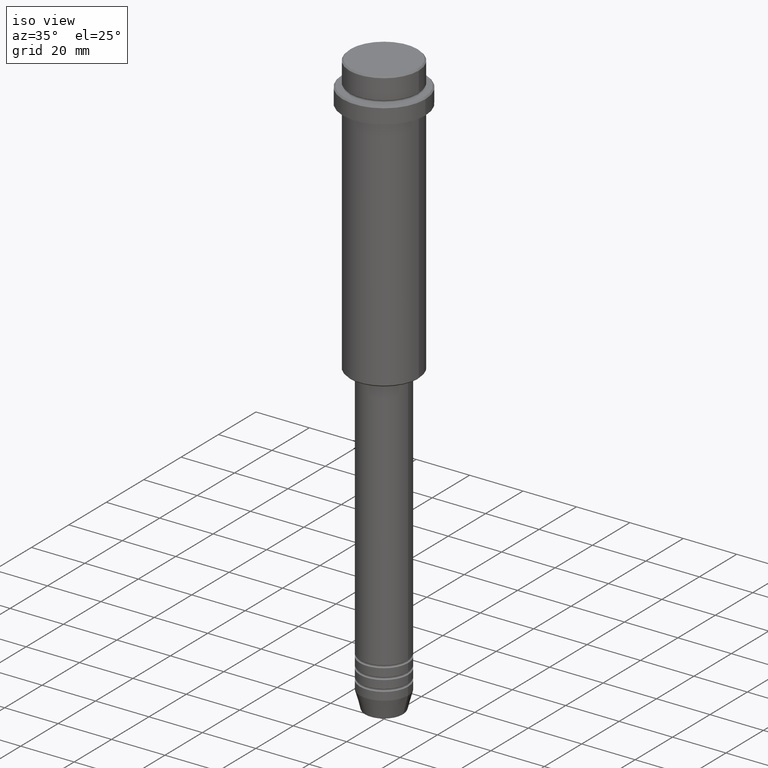
[diagram: clean part render]
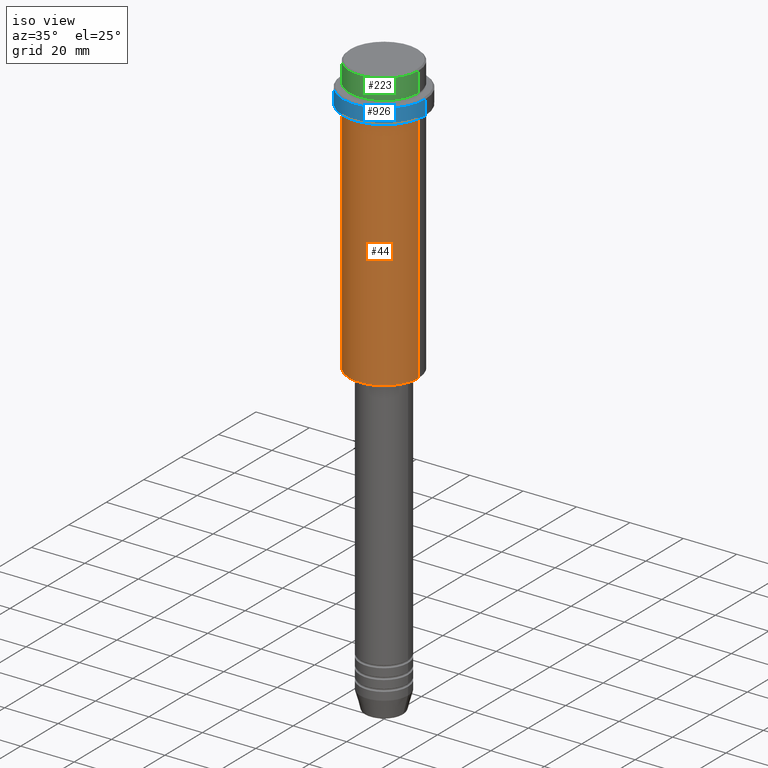
[diagram: same view with three faces highlighted in distinct colors, each labeled with its STEP entity id]
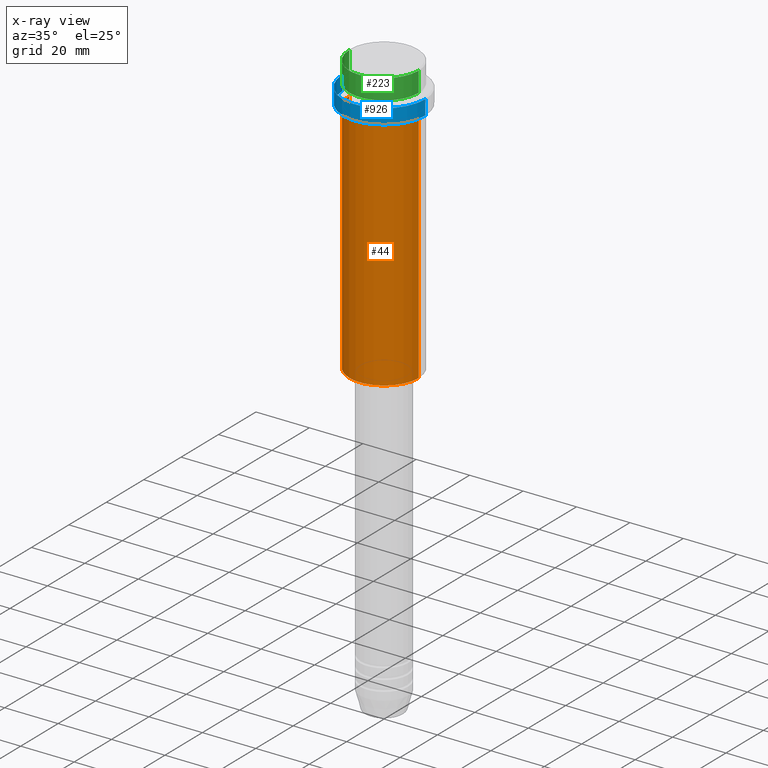
[diagram: x-ray of the same camera — body ghosted, the three highlighted faces saturated]
A machine part, iso view with three faces highlighted in distinct colors.
The next image is the same camera in x-ray (body ghosted, the three faces saturated) — at least one of them is partly hidden behind the body in this view.
Their STEP definitions:

[orange] entity #44 — the highlighted cylindrical surface (partial cylindrical patch) has radius 13 mm, axis along (-0, -0, 1).
#34 = CARTESIAN_POINT ( 'NONE',  ( 13.00000000000000000, 0.000000000000000000, -16.00000000000000000 ) ) ;
#44 = ADVANCED_FACE ( 'NONE', ( #169 ), #496, .T. ) ;
#48 = VERTEX_POINT ( 'NONE', #214 ) ;
#49 = EDGE_CURVE ( 'NONE', #48, #468, #306, .T. ) ;
#59 = AXIS2_PLACEMENT_3D ( 'NONE', #1169, #1374, #190 ) ;
#105 = EDGE_CURVE ( 'NONE', #48, #1332, #671, .T. ) ;
#169 = FACE_OUTER_BOUND ( 'NONE', #1070, .T. ) ;
#190 = DIRECTION ( 'NONE',  ( 1.000000000000000000, 0.000000000000000000, 0.000000000000000000 ) ) ;
#214 = CARTESIAN_POINT ( 'NONE',  ( -13.00000000000000000, 1.592040838891559095E-15, -104.4999999999999574 ) ) ;
#233 = ORIENTED_EDGE ( 'NONE', *, *, #364, .T. ) ;
#236 = AXIS2_PLACEMENT_3D ( 'NONE', #1237, #807, #1250 ) ;
#306 = CIRCLE ( 'NONE', #236, 13.00000000000000000 ) ;
#307 = VECTOR ( 'NONE', #676, 1000.000000000000000 ) ;
#364 = EDGE_CURVE ( 'NONE', #468, #1100, #1241, .T. ) ;
#421 = VECTOR ( 'NONE', #1118, 1000.000000000000000 ) ;
#468 = VERTEX_POINT ( 'NONE', #478 ) ;
#478 = CARTESIAN_POINT ( 'NONE',  ( 13.00000000000000000, 0.000000000000000000, -104.4999999999999574 ) ) ;
#496 = CYLINDRICAL_SURFACE ( 'NONE', #59, 13.00000000000000000 ) ;
#568 = CARTESIAN_POINT ( 'NONE',  ( 13.00000000000000000, 0.000000000000000000, 0.000000000000000000 ) ) ;
#633 = CARTESIAN_POINT ( 'NONE',  ( -13.00000000000000000, 1.592040838891559095E-15, -16.00000000000000000 ) ) ;
#671 = LINE ( 'NONE', #788, #421 ) ;
#676 = DIRECTION ( 'NONE',  ( -0.000000000000000000, -0.000000000000000000, 1.000000000000000000 ) ) ;
#783 = ORIENTED_EDGE ( 'NONE', *, *, #105, .F. ) ;
#788 = CARTESIAN_POINT ( 'NONE',  ( -13.00000000000000000, 1.592040838891559095E-15, 0.000000000000000000 ) ) ;
#807 = DIRECTION ( 'NONE',  ( -0.000000000000000000, -0.000000000000000000, 1.000000000000000000 ) ) ;
#852 = CARTESIAN_POINT ( 'NONE',  ( 0.000000000000000000, 0.000000000000000000, -16.00000000000000000 ) ) ;
#855 = AXIS2_PLACEMENT_3D ( 'NONE', #852, #1393, #1200 ) ;
#887 = ORIENTED_EDGE ( 'NONE', *, *, #49, .T. ) ;
#1023 = ORIENTED_EDGE ( 'NONE', *, *, #1390, .F. ) ;
#1070 = EDGE_LOOP ( 'NONE', ( #783, #887, #233, #1023 ) ) ;
#1100 = VERTEX_POINT ( 'NONE', #34 ) ;
#1118 = DIRECTION ( 'NONE',  ( -0.000000000000000000, -0.000000000000000000, 1.000000000000000000 ) ) ;
#1169 = CARTESIAN_POINT ( 'NONE',  ( 0.000000000000000000, 0.000000000000000000, 0.000000000000000000 ) ) ;
#1200 = DIRECTION ( 'NONE',  ( 1.000000000000000000, 0.000000000000000000, 0.000000000000000000 ) ) ;
#1237 = CARTESIAN_POINT ( 'NONE',  ( 0.000000000000000000, 0.000000000000000000, -104.4999999999999574 ) ) ;
#1241 = LINE ( 'NONE', #568, #307 ) ;
#1250 = DIRECTION ( 'NONE',  ( -1.000000000000000000, 0.000000000000000000, 0.000000000000000000 ) ) ;
#1309 = CIRCLE ( 'NONE', #855, 13.00000000000000000 ) ;
#1332 = VERTEX_POINT ( 'NONE', #633 ) ;
#1374 = DIRECTION ( 'NONE',  ( -0.000000000000000000, -0.000000000000000000, 1.000000000000000000 ) ) ;
#1390 = EDGE_CURVE ( 'NONE', #1332, #1100, #1309, .T. ) ;
#1393 = DIRECTION ( 'NONE',  ( -0.000000000000000000, -0.000000000000000000, 1.000000000000000000 ) ) ;

[blue] entity #926 — the highlighted cylindrical surface (partial cylindrical patch) has radius 15.5 mm, axis along (-0, -0, 1).
#2 = EDGE_CURVE ( 'NONE', #346, #435, #1295, .T. ) ;
#23 = CARTESIAN_POINT ( 'NONE',  ( 0.000000000000000000, 0.000000000000000000, -9.500000000000014211 ) ) ;
#73 = CARTESIAN_POINT ( 'NONE',  ( 15.50000000000000000, 0.000000000000000000, -15.00000000000000178 ) ) ;
#177 = CARTESIAN_POINT ( 'NONE',  ( -15.50000000000000000, 1.898202538678397557E-15, 0.000000000000000000 ) ) ;
#222 = CARTESIAN_POINT ( 'NONE',  ( 0.000000000000000000, 0.000000000000000000, 0.000000000000000000 ) ) ;
#256 = AXIS2_PLACEMENT_3D ( 'NONE', #23, #1226, #667 ) ;
#346 = VERTEX_POINT ( 'NONE', #1330 ) ;
#426 = LINE ( 'NONE', #177, #990 ) ;
#435 = VERTEX_POINT ( 'NONE', #796 ) ;
#462 = EDGE_CURVE ( 'NONE', #1318, #798, #964, .T. ) ;
#464 = CARTESIAN_POINT ( 'NONE',  ( 0.000000000000000000, 0.000000000000000000, -15.00000000000000178 ) ) ;
#573 = DIRECTION ( 'NONE',  ( 1.000000000000000000, 0.000000000000000000, 0.000000000000000000 ) ) ;
#591 = VECTOR ( 'NONE', #972, 1000.000000000000000 ) ;
#622 = ORIENTED_EDGE ( 'NONE', *, *, #2, .T. ) ;
#647 = DIRECTION ( 'NONE',  ( 1.000000000000000000, 0.000000000000000000, 0.000000000000000000 ) ) ;
#667 = DIRECTION ( 'NONE',  ( 1.000000000000000000, 0.000000000000000000, 0.000000000000000000 ) ) ;
#713 = EDGE_LOOP ( 'NONE', ( #889, #818, #1217, #622 ) ) ;
#750 = FACE_OUTER_BOUND ( 'NONE', #713, .T. ) ;
#771 = EDGE_CURVE ( 'NONE', #1318, #435, #426, .T. ) ;
#796 = CARTESIAN_POINT ( 'NONE',  ( -15.50000000000000000, 1.898202538678397557E-15, -9.500000000000014211 ) ) ;
#798 = VERTEX_POINT ( 'NONE', #73 ) ;
#806 = DIRECTION ( 'NONE',  ( -0.000000000000000000, -0.000000000000000000, 1.000000000000000000 ) ) ;
#818 = ORIENTED_EDGE ( 'NONE', *, *, #462, .T. ) ;
#858 = CARTESIAN_POINT ( 'NONE',  ( -15.50000000000000000, 1.898202538678397557E-15, -15.00000000000000178 ) ) ;
#889 = ORIENTED_EDGE ( 'NONE', *, *, #771, .F. ) ;
#926 = ADVANCED_FACE ( 'NONE', ( #750 ), #1191, .T. ) ;
#964 = CIRCLE ( 'NONE', #1042, 15.50000000000000000 ) ;
#972 = DIRECTION ( 'NONE',  ( -0.000000000000000000, -0.000000000000000000, 1.000000000000000000 ) ) ;
#990 = VECTOR ( 'NONE', #1175, 1000.000000000000000 ) ;
#1042 = AXIS2_PLACEMENT_3D ( 'NONE', #464, #1325, #573 ) ;
#1087 = CARTESIAN_POINT ( 'NONE',  ( 15.50000000000000000, 0.000000000000000000, 0.000000000000000000 ) ) ;
#1175 = DIRECTION ( 'NONE',  ( -0.000000000000000000, -0.000000000000000000, 1.000000000000000000 ) ) ;
#1183 = LINE ( 'NONE', #1087, #591 ) ;
#1191 = CYLINDRICAL_SURFACE ( 'NONE', #1199, 15.50000000000000000 ) ;
#1199 = AXIS2_PLACEMENT_3D ( 'NONE', #222, #806, #647 ) ;
#1217 = ORIENTED_EDGE ( 'NONE', *, *, #1302, .T. ) ;
#1226 = DIRECTION ( 'NONE',  ( 0.000000000000000000, 0.000000000000000000, -1.000000000000000000 ) ) ;
#1295 = CIRCLE ( 'NONE', #256, 15.50000000000000000 ) ;
#1302 = EDGE_CURVE ( 'NONE', #798, #346, #1183, .T. ) ;
#1318 = VERTEX_POINT ( 'NONE', #858 ) ;
#1325 = DIRECTION ( 'NONE',  ( -0.000000000000000000, -0.000000000000000000, 1.000000000000000000 ) ) ;
#1330 = CARTESIAN_POINT ( 'NONE',  ( 15.50000000000000000, 0.000000000000000000, -9.500000000000014211 ) ) ;

[green] entity #223 — the highlighted cylindrical surface (partial cylindrical patch) has radius 13 mm, axis along (-0, -0, 1).
#79 = CIRCLE ( 'NONE', #670, 12.99999999999999822 ) ;
#136 = ORIENTED_EDGE ( 'NONE', *, *, #817, .T. ) ;
#172 = VERTEX_POINT ( 'NONE', #1154 ) ;
#198 = DIRECTION ( 'NONE',  ( -0.000000000000000000, -0.000000000000000000, 1.000000000000000000 ) ) ;
#223 = ADVANCED_FACE ( 'NONE', ( #1076 ), #854, .T. ) ;
#230 = VECTOR ( 'NONE', #1135, 1000.000000000000000 ) ;
#331 = CARTESIAN_POINT ( 'NONE',  ( -12.99999999999999822, 1.592040838891558898E-15, -0.4999999999999483746 ) ) ;
#431 = DIRECTION ( 'NONE',  ( -0.000000000000000000, -0.000000000000000000, 1.000000000000000000 ) ) ;
#546 = AXIS2_PLACEMENT_3D ( 'NONE', #969, #431, #850 ) ;
#549 = ORIENTED_EDGE ( 'NONE', *, *, #1258, .T. ) ;
#559 = VERTEX_POINT ( 'NONE', #331 ) ;
#595 = CARTESIAN_POINT ( 'NONE',  ( 0.000000000000000000, 0.000000000000000000, -7.999999999999998224 ) ) ;
#670 = AXIS2_PLACEMENT_3D ( 'NONE', #595, #1270, #1038 ) ;
#678 = EDGE_CURVE ( 'NONE', #793, #559, #1064, .T. ) ;
#692 = CARTESIAN_POINT ( 'NONE',  ( 0.000000000000000000, 0.000000000000000000, -0.4999999999999483746 ) ) ;
#793 = VERTEX_POINT ( 'NONE', #1156 ) ;
#817 = EDGE_CURVE ( 'NONE', #172, #793, #940, .T. ) ;
#826 = LINE ( 'NONE', #1160, #230 ) ;
#850 = DIRECTION ( 'NONE',  ( 1.000000000000000000, 0.000000000000000000, 0.000000000000000000 ) ) ;
#854 = CYLINDRICAL_SURFACE ( 'NONE', #546, 12.99999999999999822 ) ;
#890 = ORIENTED_EDGE ( 'NONE', *, *, #678, .T. ) ;
#903 = DIRECTION ( 'NONE',  ( 1.000000000000000000, 0.000000000000000000, 0.000000000000000000 ) ) ;
#940 = LINE ( 'NONE', #1181, #1045 ) ;
#969 = CARTESIAN_POINT ( 'NONE',  ( 0.000000000000000000, 0.000000000000000000, 0.000000000000000000 ) ) ;
#999 = ORIENTED_EDGE ( 'NONE', *, *, #1238, .F. ) ;
#1038 = DIRECTION ( 'NONE',  ( 1.000000000000000000, 0.000000000000000000, 0.000000000000000000 ) ) ;
#1045 = VECTOR ( 'NONE', #198, 1000.000000000000000 ) ;
#1064 = CIRCLE ( 'NONE', #1221, 12.99999999999999822 ) ;
#1076 = FACE_OUTER_BOUND ( 'NONE', #1161, .T. ) ;
#1088 = VERTEX_POINT ( 'NONE', #1331 ) ;
#1135 = DIRECTION ( 'NONE',  ( -0.000000000000000000, -0.000000000000000000, 1.000000000000000000 ) ) ;
#1154 = CARTESIAN_POINT ( 'NONE',  ( 12.99999999999999822, 0.000000000000000000, -7.999999999999998224 ) ) ;
#1156 = CARTESIAN_POINT ( 'NONE',  ( 12.99999999999999822, 0.000000000000000000, -0.4999999999999483746 ) ) ;
#1160 = CARTESIAN_POINT ( 'NONE',  ( -12.99999999999999822, 1.592040838891558898E-15, 0.000000000000000000 ) ) ;
#1161 = EDGE_LOOP ( 'NONE', ( #999, #549, #136, #890 ) ) ;
#1181 = CARTESIAN_POINT ( 'NONE',  ( 12.99999999999999822, 0.000000000000000000, 0.000000000000000000 ) ) ;
#1221 = AXIS2_PLACEMENT_3D ( 'NONE', #692, #1230, #903 ) ;
#1230 = DIRECTION ( 'NONE',  ( 0.000000000000000000, 0.000000000000000000, -1.000000000000000000 ) ) ;
#1238 = EDGE_CURVE ( 'NONE', #1088, #559, #826, .T. ) ;
#1258 = EDGE_CURVE ( 'NONE', #1088, #172, #79, .T. ) ;
#1270 = DIRECTION ( 'NONE',  ( -0.000000000000000000, -0.000000000000000000, 1.000000000000000000 ) ) ;
#1331 = CARTESIAN_POINT ( 'NONE',  ( -12.99999999999999822, 1.592040838891558898E-15, -7.999999999999998224 ) ) ;